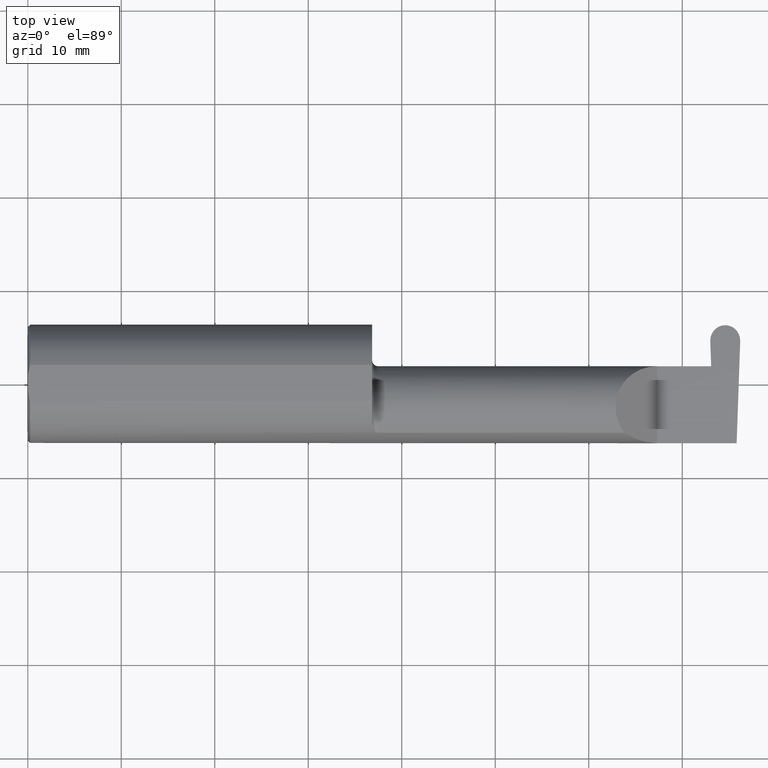
[diagram: clean part render]
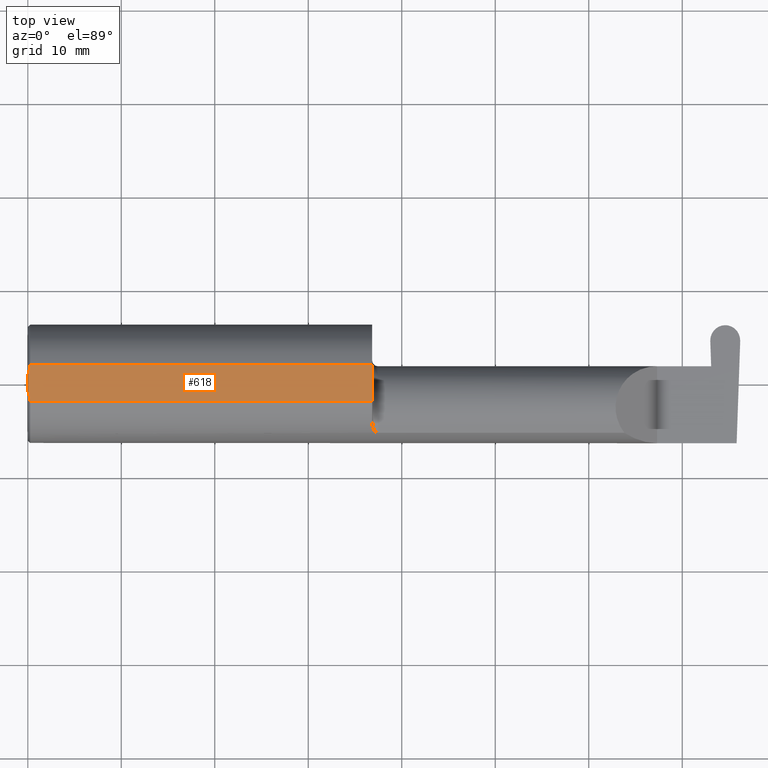
[diagram: same view with one face highlighted and labeled with its STEP entity id]
A machine part, top view. The second image highlights one B-rep face of the part: STEP entity #618.
In plain terms, the highlighted planar face has unit normal (0, 0, 1).
Its self-contained STEP definition (entity closure, byte-faithful):
#11 = VERTEX_POINT ( 'NONE', #312 ) ;
#16 = EDGE_CURVE ( 'NONE', #11, #535, #95, .T. ) ;
#33 = VECTOR ( 'NONE', #491, 39.37007874015748143 ) ;
#60 = CARTESIAN_POINT ( 'NONE',  ( 0.009999999999999856226, 0.07650098038587520299, 0.2378499999999998671 ) ) ;
#95 = LINE ( 'NONE', #521, #115 ) ;
#105 = FACE_OUTER_BOUND ( 'NONE', #286, .T. ) ;
#109 = DIRECTION ( 'NONE',  ( -0.000000000000000000, 1.000000000000000000, -0.000000000000000000 ) ) ;
#115 = VECTOR ( 'NONE', #409, 39.37007874015748143 ) ;
#118 = CARTESIAN_POINT ( 'NONE',  ( 0.000000000000000000, 0.2498499999999998500, 0.2378499999999998671 ) ) ;
#127 = ORIENTED_EDGE ( 'NONE', *, *, #572, .F. ) ;
#132 = CARTESIAN_POINT ( 'NONE',  ( 0.000000000000000000, 0.03090954545120574992, 0.2378499999999998671 ) ) ;
#152 = EDGE_CURVE ( 'NONE', #297, #673, #434, .T. ) ;
#179 = B_SPLINE_CURVE_WITH_KNOTS ( 'NONE', 3,
 ( #132, #348, #345, #289 ),
 .UNSPECIFIED., .F., .F.,
 ( 4, 4 ),
 ( 0.01593449416844770414, 0.01712021724825603733 ),
 .UNSPECIFIED. ) ;
#220 = DIRECTION ( 'NONE',  ( 0.000000000000000000, 0.000000000000000000, 1.000000000000000000 ) ) ;
#223 = DIRECTION ( 'NONE',  ( 1.000000000000000000, 0.000000000000000000, -0.000000000000000000 ) ) ;
#251 = CARTESIAN_POINT ( 'NONE',  ( 1.450000000000000178, -0.07650098038587527238, 0.2378499999999998671 ) ) ;
#258 = EDGE_CURVE ( 'NONE', #553, #673, #179, .T. ) ;
#265 = ORIENTED_EDGE ( 'NONE', *, *, #152, .T. ) ;
#286 = EDGE_LOOP ( 'NONE', ( #366, #328, #265, #384, #127, #443 ) ) ;
#289 = CARTESIAN_POINT ( 'NONE',  ( 0.009999999999999856226, 0.07650098038587520299, 0.2378499999999998671 ) ) ;
#297 = VERTEX_POINT ( 'NONE', #450 ) ;
#307 = CARTESIAN_POINT ( 'NONE',  ( 0.009999999999999856226, -0.07650098038587520299, 0.2378499999999998671 ) ) ;
#312 = CARTESIAN_POINT ( 'NONE',  ( 0.009999999999999856226, -0.07650098038587520299, 0.2378499999999998671 ) ) ;
#318 = VERTEX_POINT ( 'NONE', #669 ) ;
#328 = ORIENTED_EDGE ( 'NONE', *, *, #623, .T. ) ;
#329 = CARTESIAN_POINT ( 'NONE',  ( 3.501298404146671484, 0.2498499999999998500, 0.2378499999999998671 ) ) ;
#345 = CARTESIAN_POINT ( 'NONE',  ( 0.005466242398876384675, 0.06169385855649840017, 0.2378499999999998671 ) ) ;
#348 = CARTESIAN_POINT ( 'NONE',  ( 0.002005502345409059580, 0.04647171987093979412, 0.2378499999999998671 ) ) ;
#366 = ORIENTED_EDGE ( 'NONE', *, *, #16, .T. ) ;
#374 = LINE ( 'NONE', #702, #33 ) ;
#381 = PLANE ( 'NONE',  #644 ) ;
#384 = ORIENTED_EDGE ( 'NONE', *, *, #258, .F. ) ;
#409 = DIRECTION ( 'NONE',  ( 1.000000000000000000, 0.000000000000000000, 0.000000000000000000 ) ) ;
#434 = LINE ( 'NONE', #484, #657 ) ;
#443 = ORIENTED_EDGE ( 'NONE', *, *, #446, .F. ) ;
#444 = B_SPLINE_CURVE_WITH_KNOTS ( 'NONE', 3,
 ( #307, #531, #698, #579 ),
 .UNSPECIFIED., .F., .F.,
 ( 4, 4 ),
 ( 0.01317593029100230795, 0.01435802289191462008 ),
 .UNSPECIFIED. ) ;
#446 = EDGE_CURVE ( 'NONE', #11, #318, #444, .T. ) ;
#450 = CARTESIAN_POINT ( 'NONE',  ( 1.450000000000000178, 0.07650098038587520299, 0.2378499999999998671 ) ) ;
#484 = CARTESIAN_POINT ( 'NONE',  ( 0.000000000000000000, 0.07650098038587520299, 0.2378499999999998671 ) ) ;
#491 = DIRECTION ( 'NONE',  ( -5.995991820921354631E-17, 1.000000000000000000, 0.000000000000000000 ) ) ;
#521 = CARTESIAN_POINT ( 'NONE',  ( 0.000000000000000000, -0.07650098038587520299, 0.2378499999999998671 ) ) ;
#531 = CARTESIAN_POINT ( 'NONE',  ( 0.005459900170181723050, -0.06167314502012866823, 0.2378499999999998671 ) ) ;
#535 = VERTEX_POINT ( 'NONE', #251 ) ;
#553 = VERTEX_POINT ( 'NONE', #596 ) ;
#572 = EDGE_CURVE ( 'NONE', #318, #553, #649, .T. ) ;
#579 = CARTESIAN_POINT ( 'NONE',  ( 0.000000000000000000, -0.03090954545120560767, 0.2378499999999998671 ) ) ;
#596 = CARTESIAN_POINT ( 'NONE',  ( 0.000000000000000000, 0.03090954545120574992, 0.2378499999999998671 ) ) ;
#607 = DIRECTION ( 'NONE',  ( -1.000000000000000000, -0.000000000000000000, -0.000000000000000000 ) ) ;
#618 = ADVANCED_FACE ( 'NONE', ( #105 ), #381, .T. ) ;
#623 = EDGE_CURVE ( 'NONE', #535, #297, #374, .T. ) ;
#631 = VECTOR ( 'NONE', #109, 39.37007874015748143 ) ;
#644 = AXIS2_PLACEMENT_3D ( 'NONE', #329, #220, #223 ) ;
#649 = LINE ( 'NONE', #118, #631 ) ;
#657 = VECTOR ( 'NONE', #607, 39.37007874015748143 ) ;
#669 = CARTESIAN_POINT ( 'NONE',  ( 0.000000000000000000, -0.03090954545120560767, 0.2378499999999998671 ) ) ;
#673 = VERTEX_POINT ( 'NONE', #60 ) ;
#698 = CARTESIAN_POINT ( 'NONE',  ( 0.001983148254845701515, -0.04629825796642599717, 0.2378499999999998671 ) ) ;
#702 = CARTESIAN_POINT ( 'NONE',  ( 1.450000000000000178, 0.2498499999999997390, 0.2378499999999998671 ) ) ;